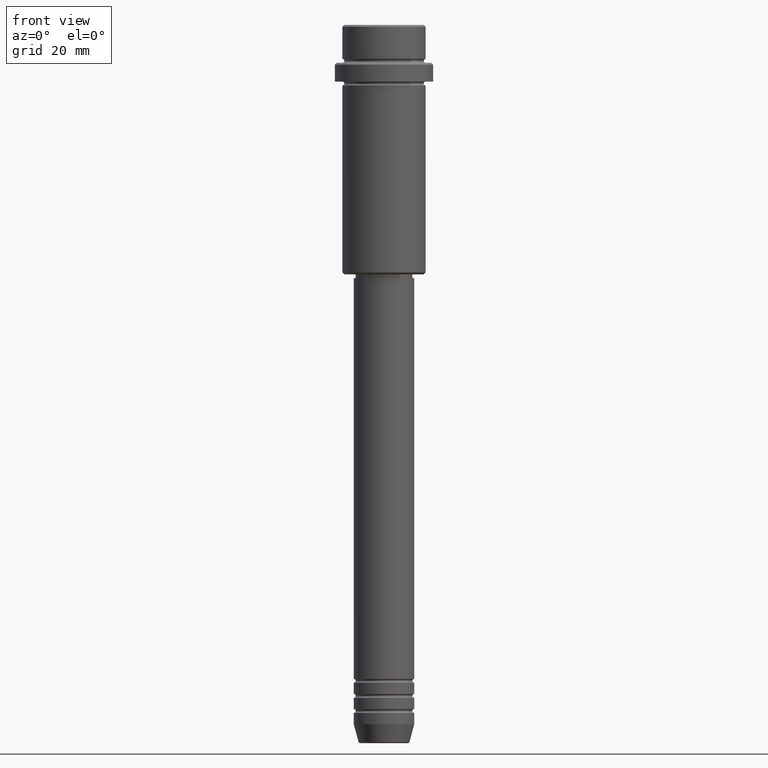
[diagram: clean part render]
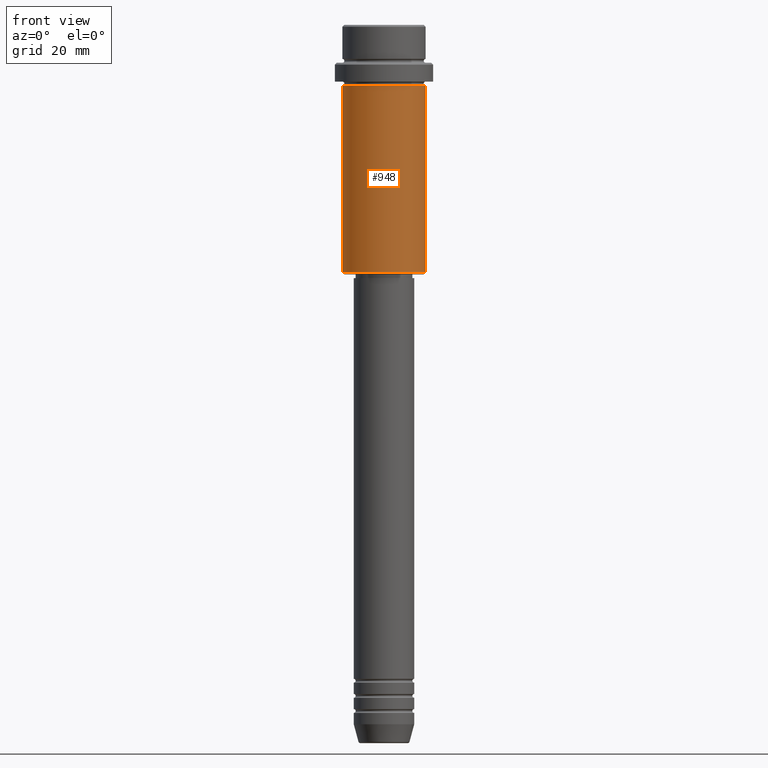
[diagram: same view with one face highlighted and labeled with its STEP entity id]
A machine part, front view. The second image highlights one B-rep face of the part: STEP entity #948.
In plain terms, the highlighted cylindrical surface (partial cylindrical patch) has radius 11 mm, axis along (-0, -0, 1).
Its self-contained STEP definition (entity closure, byte-faithful):
#24 = DIRECTION ( 'NONE',  ( -1.000000000000000000, 0.000000000000000000, 0.000000000000000000 ) ) ;
#26 = CARTESIAN_POINT ( 'NONE',  ( -10.99999999999998757, 1.347111479062086827E-15, -65.50000000000007105 ) ) ;
#130 = VECTOR ( 'NONE', #518, 1000.000000000000000 ) ;
#179 = DIRECTION ( 'NONE',  ( -0.000000000000000000, -0.000000000000000000, 1.000000000000000000 ) ) ;
#199 = VERTEX_POINT ( 'NONE', #1021 ) ;
#204 = EDGE_CURVE ( 'NONE', #246, #889, #876, .T. ) ;
#213 = ORIENTED_EDGE ( 'NONE', *, *, #912, .F. ) ;
#225 = DIRECTION ( 'NONE',  ( -0.000000000000000000, -0.000000000000000000, 1.000000000000000000 ) ) ;
#246 = VERTEX_POINT ( 'NONE', #995 ) ;
#260 = AXIS2_PLACEMENT_3D ( 'NONE', #282, #179, #708 ) ;
#266 = VERTEX_POINT ( 'NONE', #26 ) ;
#282 = CARTESIAN_POINT ( 'NONE',  ( 0.000000000000000000, 0.000000000000000000, 0.000000000000000000 ) ) ;
#284 = AXIS2_PLACEMENT_3D ( 'NONE', #495, #1383, #1144 ) ;
#286 = ORIENTED_EDGE ( 'NONE', *, *, #1406, .T. ) ;
#308 = CARTESIAN_POINT ( 'NONE',  ( -10.99999999999998757, 1.347111479062086827E-15, 0.000000000000000000 ) ) ;
#381 = EDGE_LOOP ( 'NONE', ( #900, #286, #696, #213 ) ) ;
#495 = CARTESIAN_POINT ( 'NONE',  ( 0.000000000000000000, 0.000000000000000000, -16.00000000000000355 ) ) ;
#518 = DIRECTION ( 'NONE',  ( -0.000000000000000000, -0.000000000000000000, 1.000000000000000000 ) ) ;
#534 = DIRECTION ( 'NONE',  ( -0.000000000000000000, -0.000000000000000000, 1.000000000000000000 ) ) ;
#696 = ORIENTED_EDGE ( 'NONE', *, *, #204, .T. ) ;
#705 = CIRCLE ( 'NONE', #284, 10.99999999999997158 ) ;
#708 = DIRECTION ( 'NONE',  ( 1.000000000000000000, 0.000000000000000000, 0.000000000000000000 ) ) ;
#783 = CIRCLE ( 'NONE', #898, 10.99999999999998757 ) ;
#810 = FACE_OUTER_BOUND ( 'NONE', #381, .T. ) ;
#838 = VECTOR ( 'NONE', #225, 1000.000000000000000 ) ;
#876 = LINE ( 'NONE', #1213, #838 ) ;
#889 = VERTEX_POINT ( 'NONE', #1393 ) ;
#898 = AXIS2_PLACEMENT_3D ( 'NONE', #978, #534, #24 ) ;
#900 = ORIENTED_EDGE ( 'NONE', *, *, #1079, .F. ) ;
#912 = EDGE_CURVE ( 'NONE', #199, #889, #705, .T. ) ;
#913 = CYLINDRICAL_SURFACE ( 'NONE', #260, 10.99999999999998757 ) ;
#948 = ADVANCED_FACE ( 'NONE', ( #810 ), #913, .T. ) ;
#978 = CARTESIAN_POINT ( 'NONE',  ( 0.000000000000000000, 0.000000000000000000, -65.50000000000007105 ) ) ;
#995 = CARTESIAN_POINT ( 'NONE',  ( 10.99999999999998757, 0.000000000000000000, -65.50000000000007105 ) ) ;
#1021 = CARTESIAN_POINT ( 'NONE',  ( -10.99999999999997158, 1.347111479062085841E-15, -16.00000000000000355 ) ) ;
#1079 = EDGE_CURVE ( 'NONE', #266, #199, #1287, .T. ) ;
#1144 = DIRECTION ( 'NONE',  ( 1.000000000000000000, 0.000000000000000000, 0.000000000000000000 ) ) ;
#1213 = CARTESIAN_POINT ( 'NONE',  ( 10.99999999999998757, 0.000000000000000000, 0.000000000000000000 ) ) ;
#1287 = LINE ( 'NONE', #308, #130 ) ;
#1383 = DIRECTION ( 'NONE',  ( -0.000000000000000000, -0.000000000000000000, 1.000000000000000000 ) ) ;
#1393 = CARTESIAN_POINT ( 'NONE',  ( 10.99999999999997158, 0.000000000000000000, -16.00000000000000355 ) ) ;
#1406 = EDGE_CURVE ( 'NONE', #266, #246, #783, .T. ) ;